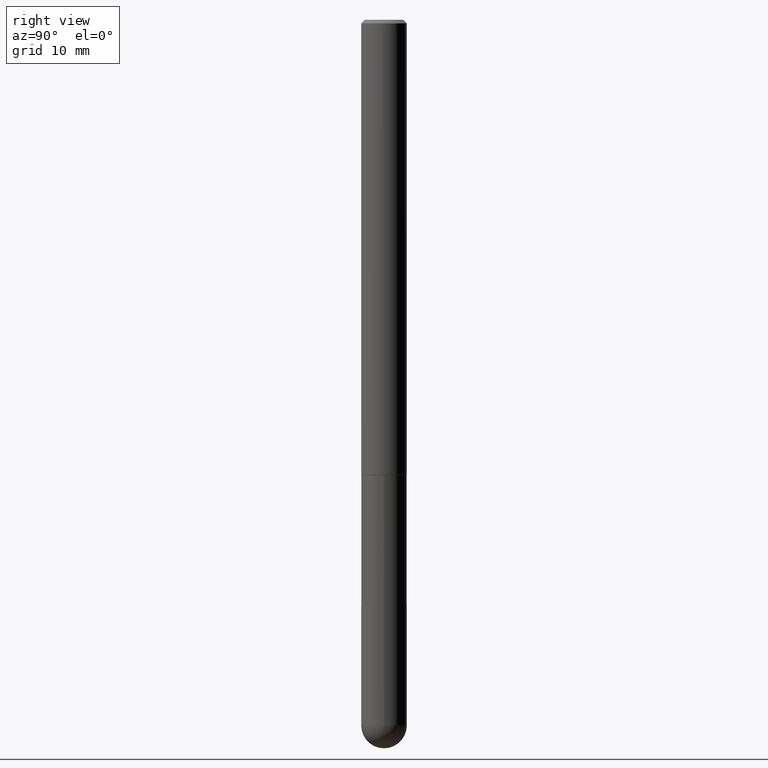
[diagram: clean part render]
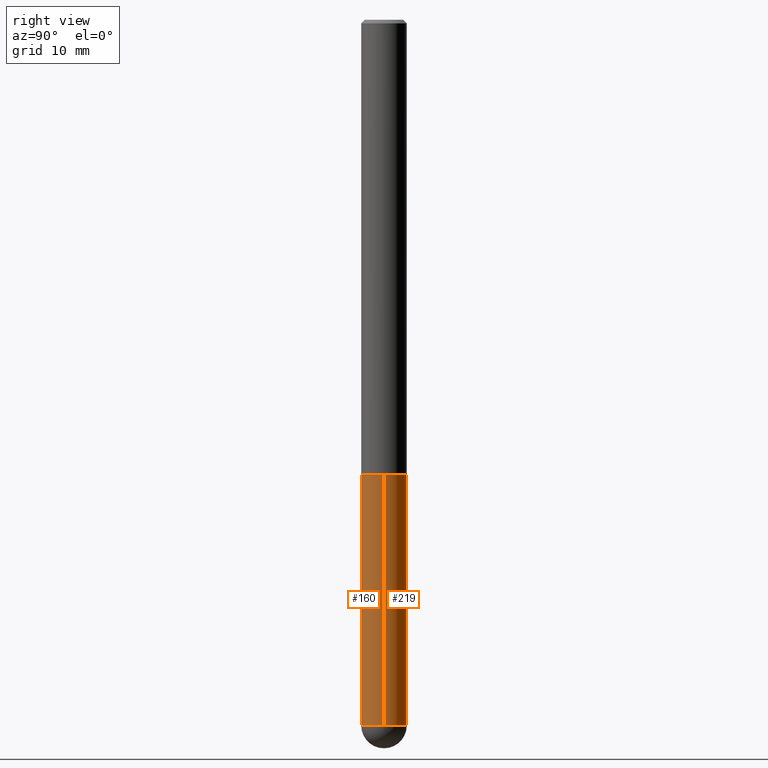
[diagram: same view with one multi-face feature highlighted, each face labeled with its STEP entity id]
A machine part, right view. The highlighted faces form ONE feature: a constant-radius fillet chain: 2 tangent blend faces with common blend radius 3.175 mm. The faces share edges in the B-rep.
Their STEP definitions:
[1] entity #219 (Cylinder):
#2 = DIRECTION ( 'NONE',  ( -2.445468806185136597E-29, 3.491481338843145583E-15, 1.000000000000000000 ) ) ;
#4 = DIRECTION ( 'NONE',  ( -2.445468806185136597E-29, 3.491481338843145583E-15, 1.000000000000000000 ) ) ;
#10 = ORIENTED_EDGE ( 'NONE', *, *, #128, .T. ) ;
#20 = VECTOR ( 'NONE', #302, 39.37007874015748143 ) ;
#59 = EDGE_CURVE ( 'NONE', #231, #400, #172, .T. ) ;
#75 = CARTESIAN_POINT ( 'NONE',  ( 0.1250000000000000000, -8.728703347107833388E-16, 6.095220969744919741E-30 ) ) ;
#81 = VERTEX_POINT ( 'NONE', #117 ) ;
#88 = CIRCLE ( 'NONE', #410, 0.1250000000000000000 ) ;
#92 = VERTEX_POINT ( 'NONE', #275 ) ;
#95 = CARTESIAN_POINT ( 'NONE',  ( 9.476191623967404313E-29, -1.352949018801718908E-14, -3.875000000000000000 ) ) ;
#101 = CARTESIAN_POINT ( 'NONE',  ( 0.000000000000000000, 0.000000000000000000, 0.000000000000000000 ) ) ;
#102 = CARTESIAN_POINT ( 'NONE',  ( -0.1250000000000000000, 8.881784197001252323E-16, -6.148668862818632227E-30 ) ) ;
#109 = ORIENTED_EDGE ( 'NONE', *, *, #307, .F. ) ;
#117 = CARTESIAN_POINT ( 'NONE',  ( -0.1250000000000000000, -1.024091834786240415E-14, -3.875000000000000000 ) ) ;
#128 = EDGE_CURVE ( 'NONE', #81, #92, #384, .T. ) ;
#131 = DIRECTION ( 'NONE',  ( 1.000000000000000000, -6.982962677686266711E-15, 4.876176775795935793E-29 ) ) ;
#140 = AXIS2_PLACEMENT_3D ( 'NONE', #95, #217, #143 ) ;
#142 = LINE ( 'NONE', #75, #20 ) ;
#143 = DIRECTION ( 'NONE',  ( 1.000000000000000000, -6.982962677686262766E-15, 0.000000000000000000 ) ) ;
#146 = CIRCLE ( 'NONE', #327, 0.1250000000000000000 ) ;
#148 = CARTESIAN_POINT ( 'NONE',  ( 8.728703347108770161E-16, 0.1249999999999863443, -3.875000000000000444 ) ) ;
#153 = ORIENTED_EDGE ( 'NONE', *, *, #296, .T. ) ;
#162 = CYLINDRICAL_SURFACE ( 'NONE', #314, 0.1250000000000000000 ) ;
#166 = DIRECTION ( 'NONE',  ( 1.000000000000000000, -6.982962677686270655E-15, 0.000000000000000000 ) ) ;
#172 = CIRCLE ( 'NONE', #140, 0.1250000000000000000 ) ;
#195 = DIRECTION ( 'NONE',  ( 1.000000000000000000, -6.982962677686262766E-15, 0.000000000000000000 ) ) ;
#196 = FACE_OUTER_BOUND ( 'NONE', #385, .T. ) ;
#212 = CARTESIAN_POINT ( 'NONE',  ( 9.476191623967404313E-29, -1.352949018801718908E-14, -3.875000000000000000 ) ) ;
#217 = DIRECTION ( 'NONE',  ( -2.445468806185136597E-29, 3.491481338843145583E-15, 1.000000000000000000 ) ) ;
#219 = ADVANCED_FACE ( 'NONE', ( #196 ), #162, .T. ) ;
#222 = DIRECTION ( 'NONE',  ( -2.445468806185136877E-29, 3.491481338843145188E-15, 1.000000000000000000 ) ) ;
#224 = CARTESIAN_POINT ( 'NONE',  ( 0.1250000000000000000, -1.200196710227331272E-14, -3.875000000000000000 ) ) ;
#231 = VERTEX_POINT ( 'NONE', #224 ) ;
#275 = CARTESIAN_POINT ( 'NONE',  ( -0.1250000000000000000, -1.024091834786240099E-14, -2.500000000000000000 ) ) ;
#284 = ORIENTED_EDGE ( 'NONE', *, *, #376, .F. ) ;
#289 = DIRECTION ( 'NONE',  ( -2.445468806185136597E-29, 3.491481338843145583E-15, 1.000000000000000000 ) ) ;
#296 = EDGE_CURVE ( 'NONE', #400, #81, #88, .T. ) ;
#302 = DIRECTION ( 'NONE',  ( -2.445468806185136877E-29, 3.491481338843145188E-15, 1.000000000000000000 ) ) ;
#303 = CARTESIAN_POINT ( 'NONE',  ( 0.1250000000000000000, -9.601573681818648281E-15, -2.500000000000000000 ) ) ;
#304 = VECTOR ( 'NONE', #222, 39.37007874015748143 ) ;
#307 = EDGE_CURVE ( 'NONE', #313, #92, #146, .T. ) ;
#313 = VERTEX_POINT ( 'NONE', #303 ) ;
#314 = AXIS2_PLACEMENT_3D ( 'NONE', #101, #4, #131 ) ;
#327 = AXIS2_PLACEMENT_3D ( 'NONE', #372, #289, #166 ) ;
#358 = ORIENTED_EDGE ( 'NONE', *, *, #59, .T. ) ;
#372 = CARTESIAN_POINT ( 'NONE',  ( 6.113672015462842613E-29, -8.728703347107864943E-15, -2.500000000000000000 ) ) ;
#376 = EDGE_CURVE ( 'NONE', #231, #313, #142, .T. ) ;
#384 = LINE ( 'NONE', #102, #304 ) ;
#385 = EDGE_LOOP ( 'NONE', ( #153, #10, #109, #284, #358 ) ) ;
#400 = VERTEX_POINT ( 'NONE', #148 ) ;
#410 = AXIS2_PLACEMENT_3D ( 'NONE', #212, #2, #195 ) ;
[2] entity #160 (Cylinder):
#11 = AXIS2_PLACEMENT_3D ( 'NONE', #258, #24, #17 ) ;
#17 = DIRECTION ( 'NONE',  ( 1.000000000000000000, -6.982962677686270655E-15, 0.000000000000000000 ) ) ;
#20 = VECTOR ( 'NONE', #302, 39.37007874015748143 ) ;
#24 = DIRECTION ( 'NONE',  ( -2.445468806185136597E-29, 3.491481338843145583E-15, 1.000000000000000000 ) ) ;
#29 = EDGE_LOOP ( 'NONE', ( #365, #121, #78, #404, #266 ) ) ;
#34 = CIRCLE ( 'NONE', #114, 0.1250000000000000000 ) ;
#42 = DIRECTION ( 'NONE',  ( 1.000000000000000000, -6.982962677686262766E-15, 0.000000000000000000 ) ) ;
#64 = CIRCLE ( 'NONE', #263, 0.1250000000000000000 ) ;
#75 = CARTESIAN_POINT ( 'NONE',  ( 0.1250000000000000000, -8.728703347107833388E-16, 6.095220969744919741E-30 ) ) ;
#76 = CARTESIAN_POINT ( 'NONE',  ( 0.000000000000000000, 0.000000000000000000, 0.000000000000000000 ) ) ;
#78 = ORIENTED_EDGE ( 'NONE', *, *, #134, .T. ) ;
#79 = AXIS2_PLACEMENT_3D ( 'NONE', #76, #297, #292 ) ;
#81 = VERTEX_POINT ( 'NONE', #117 ) ;
#92 = VERTEX_POINT ( 'NONE', #275 ) ;
#102 = CARTESIAN_POINT ( 'NONE',  ( -0.1250000000000000000, 8.881784197001252323E-16, -6.148668862818632227E-30 ) ) ;
#108 = DIRECTION ( 'NONE',  ( -2.445468806185136597E-29, 3.491481338843145583E-15, 1.000000000000000000 ) ) ;
#114 = AXIS2_PLACEMENT_3D ( 'NONE', #387, #291, #194 ) ;
#117 = CARTESIAN_POINT ( 'NONE',  ( -0.1250000000000000000, -1.024091834786240415E-14, -3.875000000000000000 ) ) ;
#121 = ORIENTED_EDGE ( 'NONE', *, *, #259, .T. ) ;
#128 = EDGE_CURVE ( 'NONE', #81, #92, #384, .T. ) ;
#134 = EDGE_CURVE ( 'NONE', #171, #231, #34, .T. ) ;
#135 = CARTESIAN_POINT ( 'NONE',  ( 9.476191623967404313E-29, -1.352949018801718908E-14, -3.875000000000000000 ) ) ;
#142 = LINE ( 'NONE', #75, #20 ) ;
#160 = ADVANCED_FACE ( 'NONE', ( #350 ), #233, .T. ) ;
#161 = CARTESIAN_POINT ( 'NONE',  ( -8.881784197000325412E-16, -0.1250000000000138500, -3.874999999999999556 ) ) ;
#171 = VERTEX_POINT ( 'NONE', #161 ) ;
#194 = DIRECTION ( 'NONE',  ( 1.000000000000000000, -6.982962677686262766E-15, 0.000000000000000000 ) ) ;
#222 = DIRECTION ( 'NONE',  ( -2.445468806185136877E-29, 3.491481338843145188E-15, 1.000000000000000000 ) ) ;
#224 = CARTESIAN_POINT ( 'NONE',  ( 0.1250000000000000000, -1.200196710227331272E-14, -3.875000000000000000 ) ) ;
#231 = VERTEX_POINT ( 'NONE', #224 ) ;
#233 = CYLINDRICAL_SURFACE ( 'NONE', #79, 0.1250000000000000000 ) ;
#258 = CARTESIAN_POINT ( 'NONE',  ( 6.113672015462842613E-29, -8.728703347107864943E-15, -2.500000000000000000 ) ) ;
#259 = EDGE_CURVE ( 'NONE', #81, #171, #64, .T. ) ;
#263 = AXIS2_PLACEMENT_3D ( 'NONE', #135, #108, #42 ) ;
#266 = ORIENTED_EDGE ( 'NONE', *, *, #333, .F. ) ;
#275 = CARTESIAN_POINT ( 'NONE',  ( -0.1250000000000000000, -1.024091834786240099E-14, -2.500000000000000000 ) ) ;
#291 = DIRECTION ( 'NONE',  ( -2.445468806185136597E-29, 3.491481338843145583E-15, 1.000000000000000000 ) ) ;
#292 = DIRECTION ( 'NONE',  ( 1.000000000000000000, -6.982962677686266711E-15, 4.876176775795935793E-29 ) ) ;
#297 = DIRECTION ( 'NONE',  ( -2.445468806185136597E-29, 3.491481338843145583E-15, 1.000000000000000000 ) ) ;
#299 = CIRCLE ( 'NONE', #11, 0.1250000000000000000 ) ;
#302 = DIRECTION ( 'NONE',  ( -2.445468806185136877E-29, 3.491481338843145188E-15, 1.000000000000000000 ) ) ;
#303 = CARTESIAN_POINT ( 'NONE',  ( 0.1250000000000000000, -9.601573681818648281E-15, -2.500000000000000000 ) ) ;
#304 = VECTOR ( 'NONE', #222, 39.37007874015748143 ) ;
#313 = VERTEX_POINT ( 'NONE', #303 ) ;
#333 = EDGE_CURVE ( 'NONE', #92, #313, #299, .T. ) ;
#350 = FACE_OUTER_BOUND ( 'NONE', #29, .T. ) ;
#365 = ORIENTED_EDGE ( 'NONE', *, *, #128, .F. ) ;
#376 = EDGE_CURVE ( 'NONE', #231, #313, #142, .T. ) ;
#384 = LINE ( 'NONE', #102, #304 ) ;
#387 = CARTESIAN_POINT ( 'NONE',  ( 9.476191623967404313E-29, -1.352949018801718908E-14, -3.875000000000000000 ) ) ;
#404 = ORIENTED_EDGE ( 'NONE', *, *, #376, .T. ) ;